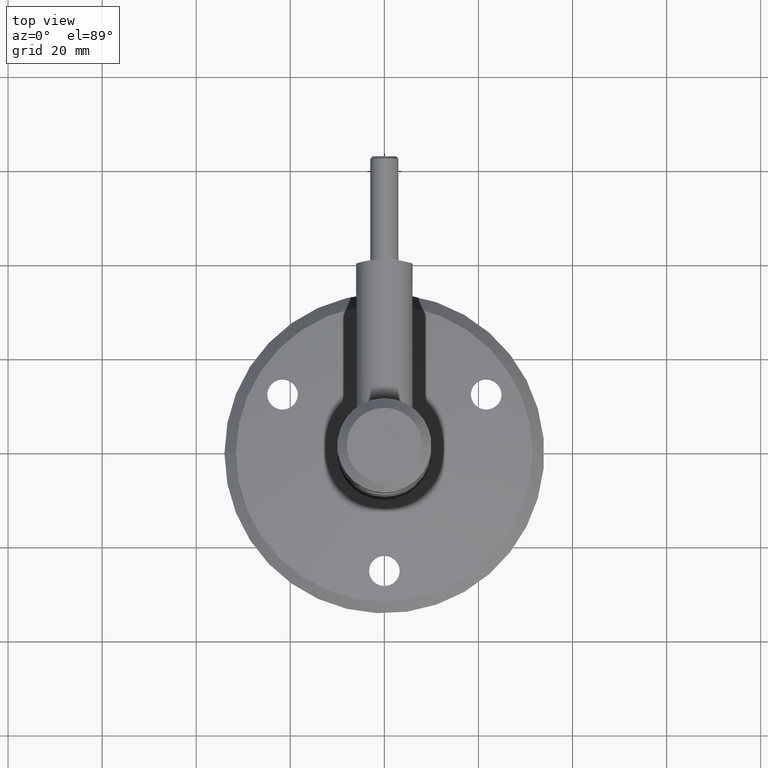
[diagram: clean part render]
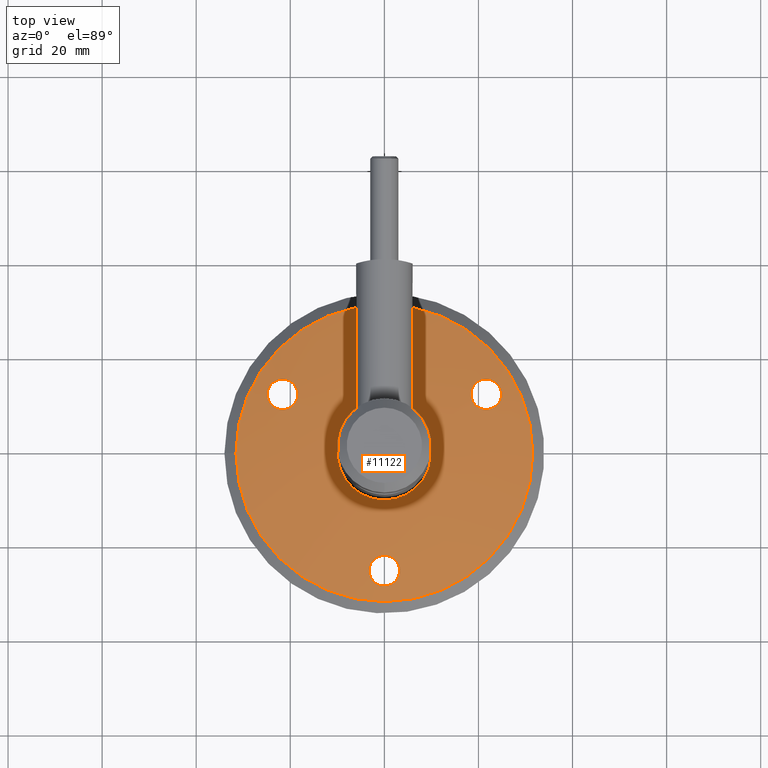
[diagram: same view with one face highlighted and labeled with its STEP entity id]
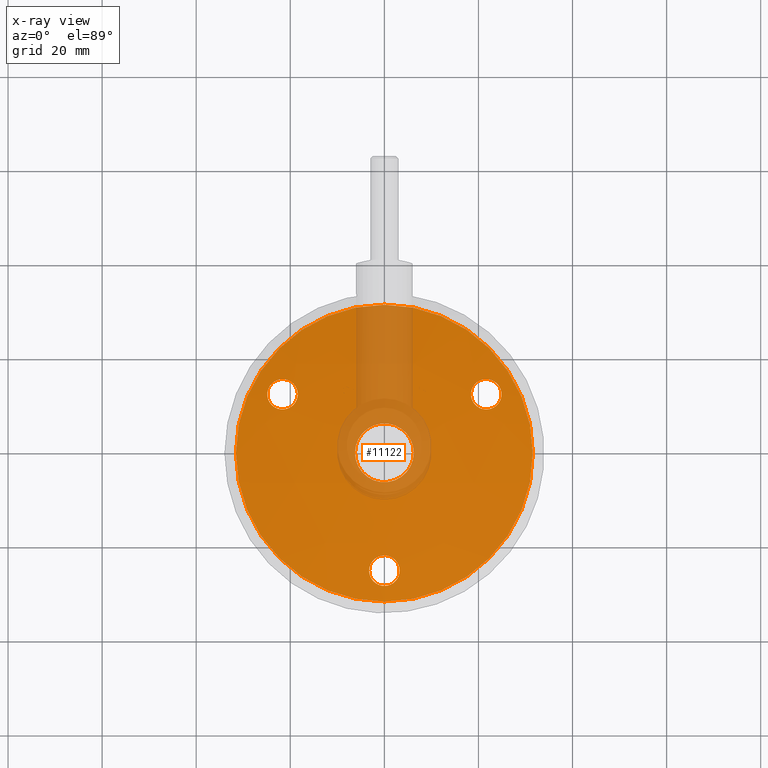
[diagram: x-ray of the same camera — body ghosted, the highlighted face saturated]
A machine part, top view. The second image highlights one B-rep face of the part: STEP entity #11122.
The next image is the same camera in x-ray: the body ghosted, the highlighted face saturated — about 16% of this face is hidden behind the body in this view.
In plain terms, the highlighted spherical surface has radius 137.202 mm.
Its self-contained STEP definition (entity closure, byte-faithful):
#24 = CARTESIAN_POINT ( 'NONE',  ( 18.88894982195237304, 2.947012561706854772, -14.22624513909242339 ) ) ;
#75 = CARTESIAN_POINT ( 'NONE',  ( 19.94467130870764393, 3.193934820786425544, -9.725501036107457864 ) ) ;
#555 = FACE_OUTER_BOUND ( 'NONE', #1081, .T. ) ;
#593 = CARTESIAN_POINT ( 'NONE',  ( -0.1172503133646812246, 2.059217600725855135, 28.25502590369421796 ) ) ;
#628 = CARTESIAN_POINT ( 'NONE',  ( -20.61654710517798605, 3.115463969069243610, -9.411514435609422691 ) ) ;
#638 = CARTESIAN_POINT ( 'NONE',  ( 1.555001865484949120, 3.193397503937319026, 22.13825590466885274 ) ) ;
#668 = CARTESIAN_POINT ( 'NONE',  ( -31.55000000000002913, 1.323225072109827538, 0.000000000000000000 ) ) ;
#673 = CARTESIAN_POINT ( 'NONE',  ( -24.73711779978532732, 2.070746018614886275, -13.54027720448654648 ) ) ;
#719 = CARTESIAN_POINT ( 'NONE',  ( -23.94445536813697117, 2.081064348510307305, -14.80236585988659215 ) ) ;
#724 = CARTESIAN_POINT ( 'NONE',  ( -24.88104229084694907, 2.105677340902669670, -12.91572366987877807 ) ) ;
#736 = CARTESIAN_POINT ( 'NONE',  ( -2.652083467339524159, 3.013919057515296096, 23.10964654700810073 ) ) ;
#775 = CARTESIAN_POINT ( 'NONE',  ( -19.67041478332599524, 2.742186062155154147, -15.08560655075569201 ) ) ;
#788 = CARTESIAN_POINT ( 'NONE',  ( -3.171703603789285619, 2.801007440054021913, 24.26030848084601033 ) ) ;
#819 = CARTESIAN_POINT ( 'NONE',  ( -23.63795185191796477, 2.102056749315797113, -15.10773174098284777 ) ) ;
#831 = CARTESIAN_POINT ( 'NONE',  ( -0.5243711748568938846, 3.258530379275020206, 21.78541643133150885 ) ) ;
#916 = FACE_BOUND ( 'NONE', #4558, .T. ) ;
#1081 = EDGE_LOOP ( 'NONE', ( #7302 ) ) ;
#1091 = CARTESIAN_POINT ( 'NONE',  ( 20.51958394126134522, 3.127821551272237599, -9.445675947237129222 ) ) ;
#1136 = CARTESIAN_POINT ( 'NONE',  ( 24.51941609525817611, 2.345945886943709535, -10.95821226175363883 ) ) ;
#1186 = CARTESIAN_POINT ( 'NONE',  ( 23.86930150866228928, 2.085520510186924970, -14.88466783578853914 ) ) ;
#1200 = DIRECTION ( 'NONE',  ( -1.000000000000000000, 0.000000000000000000, 0.000000000000000000 ) ) ;
#1238 = CARTESIAN_POINT ( 'NONE',  ( 24.02504578450268014, 2.489276989808187679, -10.27089047614681760 ) ) ;
#1281 = SPHERICAL_SURFACE ( 'NONE', #12942, 137.2019220182881440 ) ;
#1285 = CARTESIAN_POINT ( 'NONE',  ( 23.19010605057483687, 2.682826556020097009, -9.629999331460611600 ) ) ;
#1469 = B_SPLINE_CURVE_WITH_KNOTS ( 'NONE', 3,
 ( #1833, #10016, #14632, #5390, #7636, #673, #9958, #724, #7585, #4166, #9914, #9861, #2997, #2899, #12370, #5244, #4077, #14727, #12321, #12266, #11076, #13354, #8857, #14583, #11126, #1881, #628, #5345, #3037, #7728, #12220, #6435, #8760, #14677, #13456, #1780, #1926, #5446, #11176, #4217, #13510, #12165, #11029, #6524, #10068, #6574, #14530, #6628, #775, #4117, #8902, #5294, #3084, #11225, #13404, #2947, #7780, #6477, #4264, #13560, #819, #1733 ),
 .UNSPECIFIED., .T., .F.,
 ( 4, 2, 2, 2, 2, 2, 2, 2, 2, 2, 2, 2, 2, 2, 2, 2, 2, 2, 2, 2, 2, 2, 2, 2, 2, 2, 2, 2, 2, 2, 4 ),
 ( 0.000000000000000000, 0.0006405343981068170470, 0.001281068796213634094, 0.001921603194320451033, 0.002562137592427268188, 0.003843206388640907269, 0.004483740786747729412, 0.005124275184854551121, 0.005764809582961372830, 0.006405343981068194539, 0.007045878379175016248, 0.007686412777281837090, 0.008326947175388659667, 0.008967481573495481376, 0.009608015971602303085, 0.01024855036970912479, 0.01088908476781594650, 0.01152961916592276821, 0.01217015356402958992, 0.01281068796213641336, 0.01345122236024323334, 0.01409175675835005678, 0.01473229115645687676, 0.01537282555456369673, 0.01601335995267052018, 0.01665389435077734015, 0.01729442874888416359, 0.01793496314699098357, 0.01857549754509780701, 0.01921603194320462699, 0.02049710073941826000 ),
 .UNSPECIFIED. ) ;
#1681 = EDGE_LOOP ( 'NONE', ( #5125 ) ) ;
#1733 = CARTESIAN_POINT ( 'NONE',  ( -23.94445536813696762, 2.081064348510307305, -14.80236585988659037 ) ) ;
#1745 = CARTESIAN_POINT ( 'NONE',  ( 2.084329572599634250, 3.127091800179819803, 22.49727325778666653 ) ) ;
#1780 = CARTESIAN_POINT ( 'NONE',  ( -18.56562459506210061, 3.254712308702610191, -11.45560088833774870 ) ) ;
#1793 = CARTESIAN_POINT ( 'NONE',  ( -0.7519462674531531832, 2.075228638184831720, 28.16903522041124575 ) ) ;
#1803 = FACE_OUTER_BOUND ( 'NONE', #11702, .T. ) ;
#1828 = CARTESIAN_POINT ( 'NONE',  ( -2.377566087196456124, 3.074069526793500984, 22.78422034014815623 ) ) ;
#1833 = CARTESIAN_POINT ( 'NONE',  ( -23.94445536813696762, 2.081064348510307305, -14.80236585988659037 ) ) ;
#1847 = CARTESIAN_POINT ( 'NONE',  ( -3.254939185174412053, 2.684371359849224259, 24.88988567699452403 ) ) ;
#1881 = CARTESIAN_POINT ( 'NONE',  ( -20.82327629596547780, 3.088070727677826977, -9.349972998500181376 ) ) ;
#1890 = CARTESIAN_POINT ( 'NONE',  ( -2.544496612291434090, 2.280494758044149251, 27.06574844317477613 ) ) ;
#1926 = CARTESIAN_POINT ( 'NONE',  ( -18.50302343241825298, 3.245620535900060943, -11.66255479239048753 ) ) ;
#1938 = CARTESIAN_POINT ( 'NONE',  ( -3.053011355929160509, 2.453591185380521011, 26.13397884820024686 ) ) ;
#2234 = CARTESIAN_POINT ( 'NONE',  ( 19.42918935886359222, 2.800631677322185098, -14.87227292762229958 ) ) ;
#2282 = CARTESIAN_POINT ( 'NONE',  ( 23.54771417270488953, 2.604761426851392336, -9.852743753783697045 ) ) ;
#2336 = CARTESIAN_POINT ( 'NONE',  ( 18.78118564499906995, 2.981426914756103219, -14.04075623523674388 ) ) ;
#2384 = CARTESIAN_POINT ( 'NONE',  ( 18.39520040713410509, 3.194773592698276321, -12.40018455660265673 ) ) ;
#2442 = CARTESIAN_POINT ( 'NONE',  ( 20.72428719229132454, 3.101355754431563749, -9.377631765975493749 ) ) ;
#2533 = AXIS2_PLACEMENT_3D ( 'NONE', #6886, #4326, #4382 ) ;
#2854 = CARTESIAN_POINT ( 'NONE',  ( -0.9623828176803076451, 2.085925814709616688, 28.11158063786592365 ) ) ;
#2899 = CARTESIAN_POINT ( 'NONE',  ( -24.22739399176821706, 2.434727040791076380, -10.50807816863458299 ) ) ;
#2913 = CARTESIAN_POINT ( 'NONE',  ( -3.240639539689417870, 2.724043448572284642, 24.67580458423997314 ) ) ;
#2947 = CARTESIAN_POINT ( 'NONE',  ( -21.84869701199354708, 2.330450783653805757, -15.75081597120558641 ) ) ;
#2958 = CARTESIAN_POINT ( 'NONE',  ( 3.215257991678801108, 2.760115717685868830, 24.48109461181232405 ) ) ;
#2997 = CARTESIAN_POINT ( 'NONE',  ( -24.46431466307452851, 2.363966051495623777, -10.85968104249208110 ) ) ;
#3006 = CARTESIAN_POINT ( 'NONE',  ( -3.215310095663118872, 2.567773723310505130, 25.51870960515147146 ) ) ;
#3037 = CARTESIAN_POINT ( 'NONE',  ( -20.03369022845179614, 3.184572790107894402, -9.672720161003960371 ) ) ;
#3050 = CARTESIAN_POINT ( 'NONE',  ( 2.968073675105545650, 2.415218127258670577, 26.34063642970644636 ) ) ;
#3084 = CARTESIAN_POINT ( 'NONE',  ( -20.79910536547795630, 2.509212831102145547, -15.64355001658704758 ) ) ;
#3404 = CARTESIAN_POINT ( 'NONE',  ( 18.40854198795675956, 3.212242076871429042, -12.18784056826323692 ) ) ;
#3457 = CARTESIAN_POINT ( 'NONE',  ( 24.90616642311930562, 2.131406586514861701, -12.59574120700440325 ) ) ;
#3511 = CARTESIAN_POINT ( 'NONE',  ( 21.34785977613375252, 3.012682476074112436, -9.257093012305167790 ) ) ;
#3564 = CARTESIAN_POINT ( 'NONE',  ( 22.58096321621702174, 2.224603055091951553, -15.62122840839337812 ) ) ;
#3615 = CARTESIAN_POINT ( 'NONE',  ( 24.16405819298994118, 2.452280142102347682, -10.42870501311337073 ) ) ;
#3955 = EDGE_CURVE ( 'NONE', #14690, #14690, #13344, .T. ) ;
#4040 = CARTESIAN_POINT ( 'NONE',  ( 3.242313298622514939, 2.720786068868255470, 24.69338523662900187 ) ) ;
#4077 = CARTESIAN_POINT ( 'NONE',  ( -23.62850963667584026, 2.586235691663244296, -9.912579249814296389 ) ) ;
#4117 = CARTESIAN_POINT ( 'NONE',  ( -20.01977075483108237, 2.664490509941333407, -15.31902735385285830 ) ) ;
#4128 = CARTESIAN_POINT ( 'NONE',  ( -3.117459093030929829, 2.838607584286134689, 24.05723234900649743 ) ) ;
#4166 = CARTESIAN_POINT ( 'NONE',  ( -24.89884927237729784, 2.182338020472693429, -12.06101399844036060 ) ) ;
#4180 = CARTESIAN_POINT ( 'NONE',  ( 0.9526035501422436269, 2.081227256755729726, 28.13683640741718506 ) ) ;
#4217 = CARTESIAN_POINT ( 'NONE',  ( -18.40129945160670033, 3.163992747840904673, -12.72299107302252530 ) ) ;
#4232 = CARTESIAN_POINT ( 'NONE',  ( -1.551558470308404880, 2.132061081117817114, 27.86372680938960755 ) ) ;
#4264 = CARTESIAN_POINT ( 'NONE',  ( -22.68346127423075842, 2.211108064375453264, -15.58880591448859931 ) ) ;
#4274 = CARTESIAN_POINT ( 'NONE',  ( 3.232237634562468506E-14, -132.2019220182881725, 0.000000000000000000 ) ) ;
#4326 = DIRECTION ( 'NONE',  ( -1.873600393855974325E-19, 1.000000000000000000, 0.000000000000000000 ) ) ;
#4382 = DIRECTION ( 'NONE',  ( -1.000000000000000000, 0.000000000000000000, 0.000000000000000000 ) ) ;
#4388 = CARTESIAN_POINT ( 'NONE',  ( -2.479195016265073111E-19, 1.323225072109827538, 0.000000000000000000 ) ) ;
#4529 = CARTESIAN_POINT ( 'NONE',  ( 24.69467666337875755, 2.282067944847890217, -11.34206011075923826 ) ) ;
#4558 = EDGE_LOOP ( 'NONE', ( #13181 ) ) ;
#4580 = CARTESIAN_POINT ( 'NONE',  ( 24.41212453900531187, 2.380392744745160716, -10.77322999717237373 ) ) ;
#4633 = CARTESIAN_POINT ( 'NONE',  ( 24.52164581975284818, 2.059153057529768738, -14.03800862751351275 ) ) ;
#4685 = CARTESIAN_POINT ( 'NONE',  ( 19.27367649124882831, 2.839055179507183890, -14.72664744220949196 ) ) ;
#4732 = CARTESIAN_POINT ( 'NONE',  ( 19.00811395018676464, 3.263335218038367458, -10.59574045409065590 ) ) ;
#4839 = CARTESIAN_POINT ( 'NONE',  ( 19.42918935886359222, 2.800631677322185098, -14.87227292762229958 ) ) ;
#4908 = FACE_BOUND ( 'NONE', #10387, .T. ) ;
#5125 = ORIENTED_EDGE ( 'NONE', *, *, #7164, .F. ) ;
#5205 = CARTESIAN_POINT ( 'NONE',  ( 2.882543557813234347, 2.944673202871157969, 23.48407957508331023 ) ) ;
#5244 = CARTESIAN_POINT ( 'NONE',  ( -23.79463137629334568, 2.546947800506099480, -10.04842620787102980 ) ) ;
#5294 = CARTESIAN_POINT ( 'NONE',  ( -20.59826625010757439, 2.547185275628575774, -15.58213613593666302 ) ) ;
#5345 = CARTESIAN_POINT ( 'NONE',  ( -20.22140307946008519, 3.163729874918955076, -9.573333483601809135 ) ) ;
#5354 = CARTESIAN_POINT ( 'NONE',  ( -3.241973752124351016, 2.606406489309037511, 25.31041980260864221 ) ) ;
#5390 = CARTESIAN_POINT ( 'NONE',  ( -24.47088156722825758, 2.058847795760286203, -14.12921387187842726 ) ) ;
#5403 = CARTESIAN_POINT ( 'NONE',  ( 0.5289618743537682910, 2.062853255088972215, 28.23550064353232614 ) ) ;
#5446 = CARTESIAN_POINT ( 'NONE',  ( -18.42010692785803982, 3.219912123231611023, -12.08471525968835181 ) ) ;
#5559 = CARTESIAN_POINT ( 'NONE',  ( -1.148215678861517208, 3.227759040488060727, 21.95213315451420755 ) ) ;
#5710 = CARTESIAN_POINT ( 'NONE',  ( 20.12936590792159919, 3.174132779178422403, -9.620084690063132271 ) ) ;
#5761 = CARTESIAN_POINT ( 'NONE',  ( 24.76875057411802672, 2.074873435506817909, -13.44115160241128315 ) ) ;
#5807 = CARTESIAN_POINT ( 'NONE',  ( 24.82363441776795554, 2.085200934708393739, -13.23515250402551757 ) ) ;
#5857 = CARTESIAN_POINT ( 'NONE',  ( 18.60496729850388675, 3.045402214330716451, -13.65394003139467571 ) ) ;
#5916 = CARTESIAN_POINT ( 'NONE',  ( 23.36010870152138708, 2.131527796045141532, -15.27228240149739236 ) ) ;
#6021 = CARTESIAN_POINT ( 'NONE',  ( 19.74021509409311648, 2.723784672952186181, -15.16352389844791482 ) ) ;
#6250 = B_SPLINE_CURVE_WITH_KNOTS ( 'NONE', 3,
 ( #13366, #11191, #736, #14596, #6394, #4128, #788, #2913, #1847, #5354, #3006, #9974, #1938, #11042, #1890, #12330, #13468, #4232, #13418, #2854, #1793, #11138, #593, #5403, #4180, #6537, #8869, #8722, #13522, #7695, #11087, #10028, #3050, #10994, #14544, #7596, #6587, #4040, #2958, #14689, #7649, #5205, #13322, #14492, #7545, #1745, #12179, #638, #9925, #12484, #6785, #7994, #6636, #13618, #831, #14838, #5559, #6733, #14740, #13671 ),
 .UNSPECIFIED., .T., .F.,
 ( 4, 2, 2, 2, 2, 2, 2, 2, 2, 2, 2, 2, 2, 2, 2, 2, 2, 2, 2, 2, 2, 2, 2, 2, 2, 2, 2, 2, 2, 4 ),
 ( 0.000000000000000000, 0.0006402993646019640613, 0.001280598729203928123, 0.001920898093805892184, 0.002561197458407856245, 0.003201496823009820306, 0.003841796187611784368, 0.005122394916815722031, 0.005762694281417694332, 0.006402993646019667501, 0.007043293010621640669, 0.007683592375223612103, 0.008964191104427554971, 0.009604490469029525537, 0.01024478983363149610, 0.01088508919823346840, 0.01152538856283543724, 0.01216568792743740954, 0.01280598729203937837, 0.01344628665664135067, 0.01408658602124332124, 0.01472688538584529180, 0.01536718475044726237, 0.01600748411504923641, 0.01664778347965120350, 0.01728808284425317407, 0.01792838220885514117, 0.01856868157345711173, 0.01920898093805908230, 0.02048957966726302343 ),
 .UNSPECIFIED. ) ;
#6394 = CARTESIAN_POINT ( 'NONE',  ( -2.968726553917452105, 2.912018255119823706, 23.66058793176019748 ) ) ;
#6435 = CARTESIAN_POINT ( 'NONE',  ( -19.20631834171598484, 3.254567638057666024, -10.34745766008760803 ) ) ;
#6477 = CARTESIAN_POINT ( 'NONE',  ( -22.47757323098393911, 2.238554881032444932, -15.65026004966845896 ) ) ;
#6524 = CARTESIAN_POINT ( 'NONE',  ( -18.73459882839912183, 2.997212461102313430, -13.95071986733895031 ) ) ;
#6537 = CARTESIAN_POINT ( 'NONE',  ( 1.539552414658397872, 2.130842625996769435, 27.87027044112222285 ) ) ;
#6574 = CARTESIAN_POINT ( 'NONE',  ( -19.07151420637923422, 2.893478717460577609, -14.48872166069428857 ) ) ;
#6587 = CARTESIAN_POINT ( 'NONE',  ( 3.254809561106660531, 2.642968563110862146, 25.11323806987997287 ) ) ;
#6620 = CARTESIAN_POINT ( 'NONE',  ( 19.42918935886358867, 2.800631677322185098, -14.87227292762230135 ) ) ;
#6628 = CARTESIAN_POINT ( 'NONE',  ( -19.50755223807124850, 2.780637450592027271, -14.95252807032890807 ) ) ;
#6636 = CARTESIAN_POINT ( 'NONE',  ( 0.1161358797001959542, 3.265988978492492922, 21.74499994227108601 ) ) ;
#6671 = CARTESIAN_POINT ( 'NONE',  ( -6.249999999999849898, 4.857572018106197653, 0.000000000000000000 ) ) ;
#6708 = B_SPLINE_CURVE_WITH_KNOTS ( 'NONE', 3,
 ( #2234, #4685, #11630, #24, #2336, #5857, #12790, #13971, #14988, #2384, #3404, #8245, #8195, #12735, #7037, #4732, #9402, #15037, #8092, #75, #5710, #1091, #2442, #11531, #3511, #9207, #12840, #11684, #10482, #13921, #1285, #2282, #6983, #1238, #3615, #4580, #1136, #4529, #9260, #12683, #12632, #3457, #8143, #5807, #5761, #13868, #4633, #9355, #10439, #1186, #9310, #5916, #10534, #14024, #3564, #7082, #7230, #14121, #9506, #10643, #10734, #14178, #6021, #4839 ),
 .UNSPECIFIED., .T., .F.,
 ( 4, 2, 2, 2, 2, 2, 2, 2, 2, 2, 2, 2, 2, 2, 2, 2, 2, 2, 2, 2, 2, 2, 2, 2, 2, 2, 2, 2, 2, 2, 2, 4 ),
 ( 0.000000000000000000, 0.0006403521177415821743, 0.001280704235483164349, 0.001921056353224746740, 0.002561408470966328697, 0.003201760588707911522, 0.003842112706449493480, 0.004482464824191075004, 0.005122816941932657395, 0.005763169059674240653, 0.006403521177415823044, 0.007043873295157403701, 0.007684225412898986959, 0.008324577530640569351, 0.008964929648382150007, 0.009605281766123732398, 0.01024563388386531479, 0.01088598600160689718, 0.01152633811934848131, 0.01216669023709006370, 0.01280704235483164609, 0.01344739447257322501, 0.01408774659031480740, 0.01472809870805639153, 0.01536845082579797392, 0.01600880294353955458, 0.01664915506128113870, 0.01728950717902271936, 0.01792985929676430001, 0.01857021141450588414, 0.01921056353224746480, 0.02049126776773063999 ),
 .UNSPECIFIED. ) ;
#6733 = CARTESIAN_POINT ( 'NONE',  ( -1.730317466709220708, 3.179024491603862579, 22.21610566357469452 ) ) ;
#6785 = CARTESIAN_POINT ( 'NONE',  ( 0.7547212596587001832, 3.249998871353441565, 21.83164152734045516 ) ) ;
#6886 = CARTESIAN_POINT ( 'NONE',  ( -9.101148846307532162E-19, 4.857572018106197653, 0.000000000000000000 ) ) ;
#6983 = CARTESIAN_POINT ( 'NONE',  ( 23.71785933472092367, 2.565315218260307173, -9.983387329224688855 ) ) ;
#7037 = CARTESIAN_POINT ( 'NONE',  ( 18.77942240864608792, 3.266083685111539570, -10.96205977721170299 ) ) ;
#7082 = CARTESIAN_POINT ( 'NONE',  ( 22.16698609597046143, 2.282477394766363243, -15.71573612639592987 ) ) ;
#7164 = EDGE_CURVE ( 'NONE', #11954, #11954, #6708, .T. ) ;
#7230 = CARTESIAN_POINT ( 'NONE',  ( 21.95287448798418595, 2.314428621569972755, -15.74280335271877007 ) ) ;
#7302 = ORIENTED_EDGE ( 'NONE', *, *, #3955, .T. ) ;
#7438 = VERTEX_POINT ( 'NONE', #719 ) ;
#7545 = CARTESIAN_POINT ( 'NONE',  ( 2.393788053137743344, 3.072742705906396310, 22.79141455450367104 ) ) ;
#7585 = CARTESIAN_POINT ( 'NONE',  ( -24.90148640511134559, 2.122519084708974546, -12.69935338113438128 ) ) ;
#7596 = CARTESIAN_POINT ( 'NONE',  ( 3.240883410437116918, 2.604063322359630561, 25.32305470272414993 ) ) ;
#7636 = CARTESIAN_POINT ( 'NONE',  ( -24.57353797306321042, 2.060182075989856809, -13.93707721248735787 ) ) ;
#7649 = CARTESIAN_POINT ( 'NONE',  ( 3.054439777327849548, 2.873311767099401948, 23.86974792897885678 ) ) ;
#7695 = CARTESIAN_POINT ( 'NONE',  ( 2.521227617506569985, 2.281225291621125972, 27.06177654420886824 ) ) ;
#7728 = CARTESIAN_POINT ( 'NONE',  ( -19.67794529391329306, 3.219700323245092921, -9.908375617799640267 ) ) ;
#7780 = CARTESIAN_POINT ( 'NONE',  ( -22.05889315422997043, 2.298432052435855244, -15.73129856538842830 ) ) ;
#7994 = CARTESIAN_POINT ( 'NONE',  ( 0.3336698094820432225, 3.263197103555923295, 21.76012900730683697 ) ) ;
#8092 = CARTESIAN_POINT ( 'NONE',  ( 19.59610124250001562, 3.226843847301759993, -9.972739113193004101 ) ) ;
#8143 = CARTESIAN_POINT ( 'NONE',  ( 24.89266958145624997, 2.113420337000129656, -12.81238805200509567 ) ) ;
#8195 = CARTESIAN_POINT ( 'NONE',  ( 18.53383801054825497, 3.250648406336720253, -11.55469538614645941 ) ) ;
#8243 = AXIS2_PLACEMENT_3D ( 'NONE', #4388, #8259, #1200 ) ;
#8245 = CARTESIAN_POINT ( 'NONE',  ( 18.47779698639311974, 3.240291684570735686, -11.76399078668979037 ) ) ;
#8259 = DIRECTION ( 'NONE',  ( -1.873600393855974325E-19, 1.000000000000000000, 0.000000000000000000 ) ) ;
#8722 = CARTESIAN_POINT ( 'NONE',  ( 2.069167170211656526, 2.196904678616342199, 27.51521642931912837 ) ) ;
#8760 = CARTESIAN_POINT ( 'NONE',  ( -19.07044926676215368, 3.261086695173267547, -10.51214025971928123 ) ) ;
#8857 = CARTESIAN_POINT ( 'NONE',  ( -21.87602727490682497, 2.928668120365780947, -9.250796881964467033 ) ) ;
#8869 = CARTESIAN_POINT ( 'NONE',  ( 1.723598890290417796, 2.150711254532191141, 27.76350743259145659 ) ) ;
#8902 = CARTESIAN_POINT ( 'NONE',  ( -20.20848200962191044, 2.624818230551473786, -15.42014345962395439 ) ) ;
#9207 = CARTESIAN_POINT ( 'NONE',  ( 21.77486893612024588, 2.945377498085579582, -9.245359531846444767 ) ) ;
#9260 = CARTESIAN_POINT ( 'NONE',  ( 24.76398926932149180, 2.252211217830890622, -11.54318076460995535 ) ) ;
#9310 = CARTESIAN_POINT ( 'NONE',  ( 23.70724420934636711, 2.098538150183722362, -15.02551156710136659 ) ) ;
#9355 = CARTESIAN_POINT ( 'NONE',  ( 24.29552262578601685, 2.061847758358865246, -14.40072172335154654 ) ) ;
#9402 = CARTESIAN_POINT ( 'NONE',  ( 19.13878948818302916, 3.258052519077911935, -10.42665565400530170 ) ) ;
#9427 = VERTEX_POINT ( 'NONE', #1828 ) ;
#9506 = CARTESIAN_POINT ( 'NONE',  ( 21.32025353923127753, 2.416460438653684317, -15.74013266121117383 ) ) ;
#9861 = CARTESIAN_POINT ( 'NONE',  ( -24.56621802754403561, 2.330015286706894617, -11.04861133886146796 ) ) ;
#9914 = CARTESIAN_POINT ( 'NONE',  ( -24.81130933860661614, 2.236228345368512560, -11.63325328883733434 ) ) ;
#9925 = CARTESIAN_POINT ( 'NONE',  ( 1.363605163637523709, 3.211163473195445039, 22.04202771803017669 ) ) ;
#9958 = CARTESIAN_POINT ( 'NONE',  ( -24.79856694182561583, 2.079855730769807121, -13.33599157201637553 ) ) ;
#9974 = CARTESIAN_POINT ( 'NONE',  ( -3.120901291658058518, 2.491222348875009374, 25.93126462054383197 ) ) ;
#10016 = CARTESIAN_POINT ( 'NONE',  ( -24.09770712624647260, 2.070568148107562845, -14.64968291933846345 ) ) ;
#10028 = CARTESIAN_POINT ( 'NONE',  ( 2.873785827983891927, 2.379551879132200121, 26.53265831208945258 ) ) ;
#10068 = CARTESIAN_POINT ( 'NONE',  ( -18.83636060884854402, 2.963493730098226475, -14.13912705993606522 ) ) ;
#10387 = EDGE_LOOP ( 'NONE', ( #11221 ) ) ;
#10439 = CARTESIAN_POINT ( 'NONE',  ( 24.16526904574602952, 2.067073247599673813, -14.57020226926807993 ) ) ;
#10482 = CARTESIAN_POINT ( 'NONE',  ( 22.60723233710184132, 2.798872454165445056, -9.386800500819857618 ) ) ;
#10534 = CARTESIAN_POINT ( 'NONE',  ( 23.17228563976883748, 2.151802090020170422, -15.37971464848955527 ) ) ;
#10535 = EDGE_CURVE ( 'NONE', #10890, #10890, #12155, .T. ) ;
#10562 = ORIENTED_EDGE ( 'NONE', *, *, #10535, .F. ) ;
#10643 = CARTESIAN_POINT ( 'NONE',  ( 20.90136436647427587, 2.490361623894074672, -15.66957489426263805 ) ) ;
#10734 = CARTESIAN_POINT ( 'NONE',  ( 20.69614045922203260, 2.528523918362366008, -15.61376606128417421 ) ) ;
#10890 = VERTEX_POINT ( 'NONE', #6671 ) ;
#10994 = CARTESIAN_POINT ( 'NONE',  ( 3.116154654483790143, 2.488346472022334943, 25.94675632918377417 ) ) ;
#11029 = CARTESIAN_POINT ( 'NONE',  ( -18.57021984623977673, 3.059851188689208801, -13.55777953135656233 ) ) ;
#11042 = CARTESIAN_POINT ( 'NONE',  ( -2.795408081030779535, 2.346552085457650261, 26.71036228060033579 ) ) ;
#11055 = EDGE_CURVE ( 'NONE', #9427, #9427, #6250, .T. ) ;
#11076 = CARTESIAN_POINT ( 'NONE',  ( -22.49845461499857180, 2.819213937948806592, -9.355497936667177328 ) ) ;
#11087 = CARTESIAN_POINT ( 'NONE',  ( 2.649664808068228794, 2.312425309386702654, 26.89392790032320590 ) ) ;
#11122 = ADVANCED_FACE ( 'NONE', ( #1803, #555, #4908, #916, #14353 ), #1281, .T. ) ;
#11126 = CARTESIAN_POINT ( 'NONE',  ( -21.23832845070174002, 3.029086999799630142, -9.269335064841550675 ) ) ;
#11138 = CARTESIAN_POINT ( 'NONE',  ( -0.3303291646687754324, 2.061972802585830600, 28.24022993941988346 ) ) ;
#11176 = CARTESIAN_POINT ( 'NONE',  ( -18.40000091015495443, 3.203548827759751028, -12.29681403003217177 ) ) ;
#11191 = CARTESIAN_POINT ( 'NONE',  ( -2.523869855681676100, 3.045057316170295181, 22.94120656250690971 ) ) ;
#11221 = ORIENTED_EDGE ( 'NONE', *, *, #11055, .F. ) ;
#11225 = CARTESIAN_POINT ( 'NONE',  ( -21.21266477689508534, 2.434958200791421667, -15.72725759541775759 ) ) ;
#11287 = DIRECTION ( 'NONE',  ( 1.000000000000000000, 0.000000000000000000, 0.000000000000000000 ) ) ;
#11370 = EDGE_CURVE ( 'NONE', #7438, #7438, #1469, .T. ) ;
#11531 = CARTESIAN_POINT ( 'NONE',  ( 21.13710805898421441, 3.043949442949860806, -9.283854199720140699 ) ) ;
#11630 = CARTESIAN_POINT ( 'NONE',  ( 19.13475774293444687, 2.875994150498359936, -14.56813659529073313 ) ) ;
#11684 = CARTESIAN_POINT ( 'NONE',  ( 22.40045493940097643, 2.837224414969032438, -9.330680721476184658 ) ) ;
#11702 = EDGE_LOOP ( 'NONE', ( #10562 ) ) ;
#11954 = VERTEX_POINT ( 'NONE', #6620 ) ;
#12155 = CIRCLE ( 'NONE', #2533, 6.249999999999849898 ) ;
#12165 = CARTESIAN_POINT ( 'NONE',  ( -18.50803311981916011, 3.088503431629937790, -13.35540082752597968 ) ) ;
#12179 = CARTESIAN_POINT ( 'NONE',  ( 1.914222251297089450, 3.151528825572054160, 22.36497376835382056 ) ) ;
#12220 = CARTESIAN_POINT ( 'NONE',  ( -19.50906336937646302, 3.233989557353918798, -10.04606571822417216 ) ) ;
#12266 = CARTESIAN_POINT ( 'NONE',  ( -22.70254785068151193, 2.780727093560289465, -9.417667897003237698 ) ) ;
#12321 = CARTESIAN_POINT ( 'NONE',  ( -23.09341240170863330, 2.702967691092152513, -9.580122385840059707 ) ) ;
#12330 = CARTESIAN_POINT ( 'NONE',  ( -2.083840351997478635, 2.199180790606449776, 27.50298407855450478 ) ) ;
#12370 = CARTESIAN_POINT ( 'NONE',  ( -24.09335273657313437, 2.471332867217737039, -10.34591907399737742 ) ) ;
#12382 = DIRECTION ( 'NONE',  ( 0.000000000000000000, 0.000000000000000000, -1.000000000000000000 ) ) ;
#12484 = CARTESIAN_POINT ( 'NONE',  ( 0.9607628963113350462, 3.239638932133975580, 21.88777351076884159 ) ) ;
#12632 = CARTESIAN_POINT ( 'NONE',  ( 24.89091854483383770, 2.173376761467256557, -12.17104138280056702 ) ) ;
#12683 = CARTESIAN_POINT ( 'NONE',  ( 24.86271031160428890, 2.197504992851937899, -11.96050943773115449 ) ) ;
#12735 = CARTESIAN_POINT ( 'NONE',  ( 18.68417742216792377, 3.263472949394228717, -11.15532392235214587 ) ) ;
#12790 = CARTESIAN_POINT ( 'NONE',  ( 18.53653836846913094, 3.074838351378393675, -13.45392306576353825 ) ) ;
#12840 = CARTESIAN_POINT ( 'NONE',  ( 21.98533649955744806, 2.910262477851898399, -9.260433754591446132 ) ) ;
#12942 = AXIS2_PLACEMENT_3D ( 'NONE', #4274, #12382, #11287 ) ;
#13181 = ORIENTED_EDGE ( 'NONE', *, *, #11370, .F. ) ;
#13322 = CARTESIAN_POINT ( 'NONE',  ( 2.776011371926702331, 2.979315646809696627, 23.29677815870910962 ) ) ;
#13344 = CIRCLE ( 'NONE', #8243, 31.55000000000002913 ) ;
#13354 = CARTESIAN_POINT ( 'NONE',  ( -22.08629857292349286, 2.892968690658074493, -9.272479512207663532 ) ) ;
#13366 = CARTESIAN_POINT ( 'NONE',  ( -2.377566087196457012, 3.074069526793500984, 22.78422034014816333 ) ) ;
#13404 = CARTESIAN_POINT ( 'NONE',  ( -21.42664349366461707, 2.398512144070529040, -15.74913230947403875 ) ) ;
#13418 = CARTESIAN_POINT ( 'NONE',  ( -1.361307387572567640, 2.114351102245784819, 27.95887765043584494 ) ) ;
#13456 = CARTESIAN_POINT ( 'NONE',  ( -18.72871771634513749, 3.265049537522918488, -11.06109134363719626 ) ) ;
#13468 = CARTESIAN_POINT ( 'NONE',  ( -1.913547769348248107, 2.174502030598088442, 27.63564031309753233 ) ) ;
#13510 = CARTESIAN_POINT ( 'NONE',  ( -18.42340403828160333, 3.140518350153552518, -12.93890483793276047 ) ) ;
#13522 = CARTESIAN_POINT ( 'NONE',  ( 2.231789421920733041, 2.223533809264111483, 27.37205126287997814 ) ) ;
#13560 = CARTESIAN_POINT ( 'NONE',  ( -23.27227752579469211, 2.138621269411954184, -15.34825971500769271 ) ) ;
#13618 = CARTESIAN_POINT ( 'NONE',  ( -0.3126803892903308180, 3.263594974570909635, 21.75797225605296958 ) ) ;
#13671 = CARTESIAN_POINT ( 'NONE',  ( -2.377566087196457012, 3.074069526793500984, 22.78422034014816333 ) ) ;
#13868 = CARTESIAN_POINT ( 'NONE',  ( 24.61820157831335720, 2.061797122495270695, -13.84237090517824420 ) ) ;
#13921 = CARTESIAN_POINT ( 'NONE',  ( 23.00203657631049481, 2.721649113322295310, -9.536757950943428597 ) ) ;
#13971 = CARTESIAN_POINT ( 'NONE',  ( 18.43890780444603905, 3.128634626922404127, -13.04071753140882706 ) ) ;
#14024 = CARTESIAN_POINT ( 'NONE',  ( 22.78206998812603601, 2.198443732819226781, -15.55418269264317921 ) ) ;
#14121 = CARTESIAN_POINT ( 'NONE',  ( 21.53056091759415125, 2.381283840974593780, -15.75464351770273375 ) ) ;
#14178 = CARTESIAN_POINT ( 'NONE',  ( 20.10697013443158809, 2.643866301290270560, -15.39067377340992593 ) ) ;
#14353 = FACE_BOUND ( 'NONE', #1681, .T. ) ;
#14492 = CARTESIAN_POINT ( 'NONE',  ( 2.531936178930596970, 3.043162047279416527, 22.95146321401370315 ) ) ;
#14530 = CARTESIAN_POINT ( 'NONE',  ( -19.20631854042368047, 2.856721789894974162, -14.65244387817003435 ) ) ;
#14544 = CARTESIAN_POINT ( 'NONE',  ( 3.171189370472858204, 2.526261349855008831, 25.74246050238287964 ) ) ;
#14583 = CARTESIAN_POINT ( 'NONE',  ( -21.44884143315910663, 2.997237941852187948, -9.249245955876046921 ) ) ;
#14596 = CARTESIAN_POINT ( 'NONE',  ( -2.874160315091197848, 2.947596363694640509, 23.46827372610870199 ) ) ;
#14632 = CARTESIAN_POINT ( 'NONE',  ( -24.23338061422796130, 2.064084759834598604, -14.48432698604078439 ) ) ;
#14677 = CARTESIAN_POINT ( 'NONE',  ( -18.83056022102744009, 3.266383416062730305, -10.87023837306074370 ) ) ;
#14689 = CARTESIAN_POINT ( 'NONE',  ( 3.121002218961959507, 2.836402667289207535, 24.06914453099359719 ) ) ;
#14690 = VERTEX_POINT ( 'NONE', #668 ) ;
#14727 = CARTESIAN_POINT ( 'NONE',  ( -23.27852793469298831, 2.664069411976505375, -9.679237914348401972 ) ) ;
#14740 = CARTESIAN_POINT ( 'NONE',  ( -2.084958550226017060, 3.132093948039913034, 22.47024789543066703 ) ) ;
#14838 = CARTESIAN_POINT ( 'NONE',  ( -0.9423180366073281577, 3.240663467871117032, 21.88222044286985479 ) ) ;
#14988 = CARTESIAN_POINT ( 'NONE',  ( 18.40999547850362106, 3.153118294775350883, -12.82568851021163603 ) ) ;
#15037 = CARTESIAN_POINT ( 'NONE',  ( 19.43175766987525677, 3.239917024860444084, -10.11573740926093379 ) ) ;